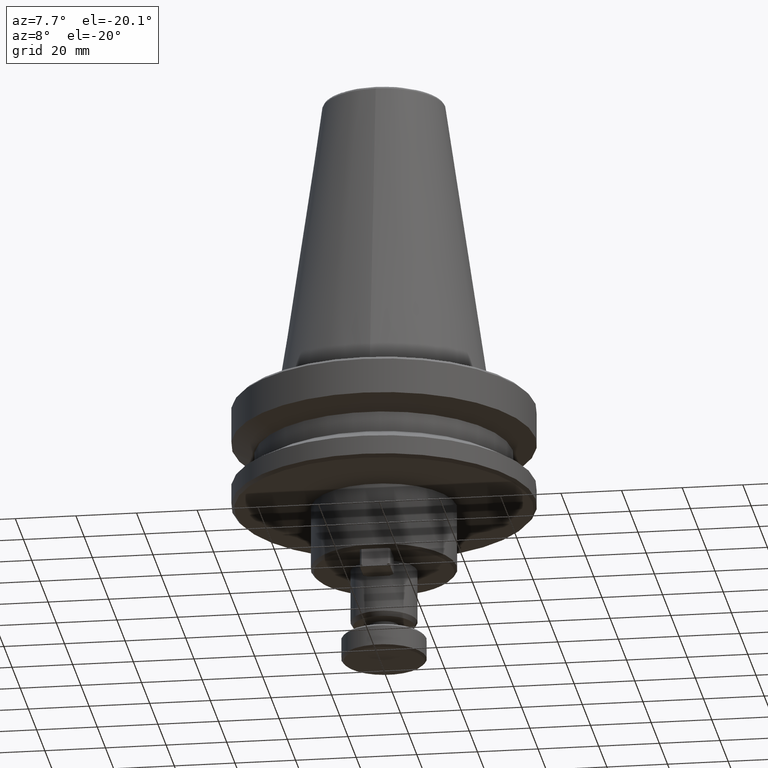
[diagram: clean part render]
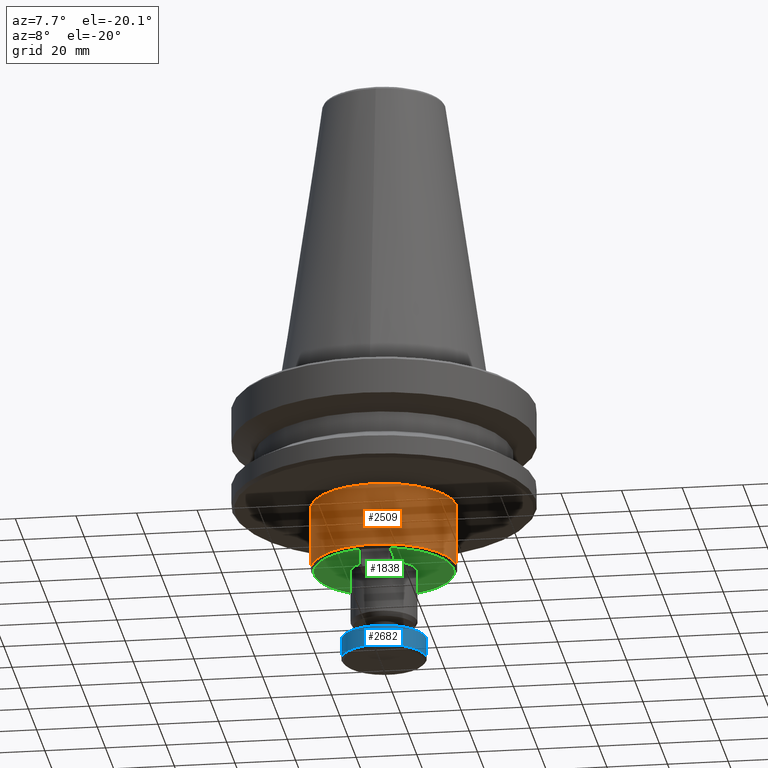
[diagram: same view with three faces highlighted in distinct colors, each labeled with its STEP entity id]
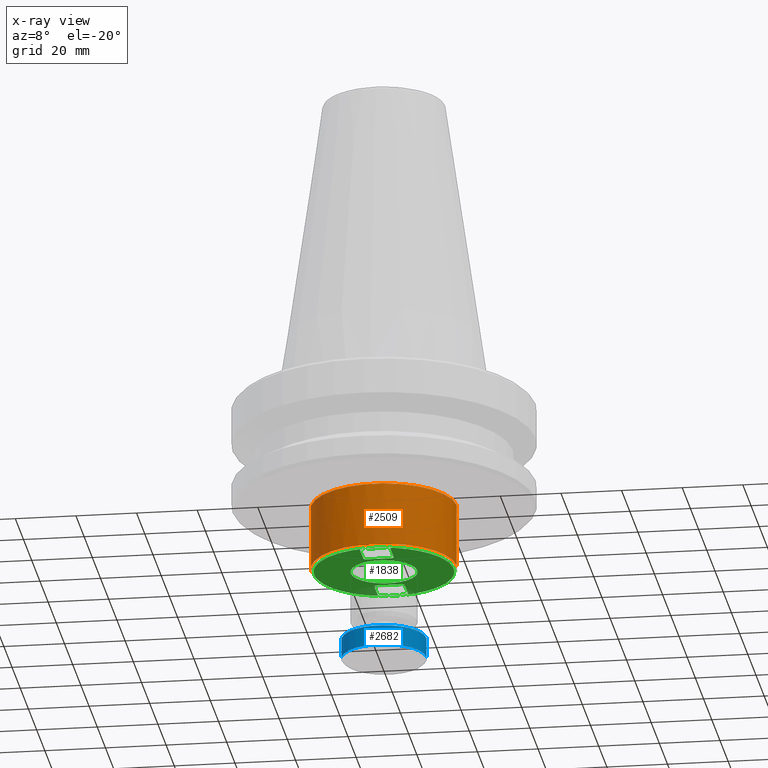
[diagram: x-ray of the same camera — body ghosted, the three highlighted faces saturated]
A machine part, auxiliary view with three faces highlighted in distinct colors.
The next image is the same camera in x-ray (body ghosted, the three faces saturated) — at least one of them is partly hidden behind the body in this view.
Their STEP definitions:

[orange] entity #2509 — the highlighted cylindrical surface (partial cylindrical patch) has radius 24 mm, axis along (0, 0, 1).
#57 = EDGE_LOOP ( 'NONE', ( #821, #222, #2569, #1429, #2453 ) ) ;
#82 = CARTESIAN_POINT ( 'NONE',  ( 24.00000000000000000, 0.0000000000000000000, -59.00000000000001400 ) ) ;
#222 = ORIENTED_EDGE ( 'NONE', *, *, #1389, .T. ) ;
#326 = FACE_OUTER_BOUND ( 'NONE', #57, .T. ) ;
#470 = VERTEX_POINT ( 'NONE', #1999 ) ;
#538 = VERTEX_POINT ( 'NONE', #2599 ) ;
#547 = VECTOR ( 'NONE', #612, 1000.000000000000000 ) ;
#612 = DIRECTION ( 'NONE',  ( 0.0000000000000000000, 0.0000000000000000000, 1.000000000000000000 ) ) ;
#614 = CARTESIAN_POINT ( 'NONE',  ( 24.00000000000000000, 0.0000000000000000000, 118.5507178974871000 ) ) ;
#670 = VERTEX_POINT ( 'NONE', #2413 ) ;
#796 = CIRCLE ( 'NONE', #1417, 24.00000000000000000 ) ;
#821 = ORIENTED_EDGE ( 'NONE', *, *, #2273, .F. ) ;
#842 = DIRECTION ( 'NONE',  ( 1.000000000000000000, 0.0000000000000000000, 0.0000000000000000000 ) ) ;
#846 = DIRECTION ( 'NONE',  ( -0.0000000000000000000, -0.0000000000000000000, -1.000000000000000000 ) ) ;
#849 = CARTESIAN_POINT ( 'NONE',  ( 0.0000000000000000000, 0.0000000000000000000, -37.99999999999999300 ) ) ;
#901 = VECTOR ( 'NONE', #2512, 1000.000000000000000 ) ;
#924 = DIRECTION ( 'NONE',  ( 1.000000000000000000, 0.0000000000000000000, 0.0000000000000000000 ) ) ;
#927 = DIRECTION ( 'NONE',  ( 0.0000000000000000000, 0.0000000000000000000, 1.000000000000000000 ) ) ;
#930 = CARTESIAN_POINT ( 'NONE',  ( 0.0000000000000000000, 0.0000000000000000000, -59.00000000000001400 ) ) ;
#945 = CIRCLE ( 'NONE', #1800, 24.00000000000000000 ) ;
#1132 = DIRECTION ( 'NONE',  ( 1.000000000000000000, 0.0000000000000000000, 0.0000000000000000000 ) ) ;
#1139 = DIRECTION ( 'NONE',  ( 0.0000000000000000000, 0.0000000000000000000, 1.000000000000000000 ) ) ;
#1140 = CARTESIAN_POINT ( 'NONE',  ( 0.0000000000000000000, 0.0000000000000000000, -59.00000000000001400 ) ) ;
#1243 = CARTESIAN_POINT ( 'NONE',  ( 0.0000000000000000000, 0.0000000000000000000, 118.5507178974871000 ) ) ;
#1248 = DIRECTION ( 'NONE',  ( 0.0000000000000000000, 0.0000000000000000000, 1.000000000000000000 ) ) ;
#1254 = DIRECTION ( 'NONE',  ( 1.000000000000000000, 0.0000000000000000000, 0.0000000000000000000 ) ) ;
#1389 = EDGE_CURVE ( 'NONE', #2248, #670, #1551, .T. ) ;
#1417 = AXIS2_PLACEMENT_3D ( 'NONE', #1140, #1139, #1132 ) ;
#1429 = ORIENTED_EDGE ( 'NONE', *, *, #1775, .T. ) ;
#1433 = LINE ( 'NONE', #2538, #901 ) ;
#1489 = EDGE_CURVE ( 'NONE', #538, #470, #945, .T. ) ;
#1551 = CIRCLE ( 'NONE', #1943, 24.00000000000000000 ) ;
#1611 = AXIS2_PLACEMENT_3D ( 'NONE', #1243, #1248, #1254 ) ;
#1775 = EDGE_CURVE ( 'NONE', #2630, #538, #2225, .T. ) ;
#1800 = AXIS2_PLACEMENT_3D ( 'NONE', #849, #846, #842 ) ;
#1943 = AXIS2_PLACEMENT_3D ( 'NONE', #930, #927, #924 ) ;
#1999 = CARTESIAN_POINT ( 'NONE',  ( -24.00000000000000000, 2.939152317953647900E-015, -37.99999999999999300 ) ) ;
#2225 = LINE ( 'NONE', #614, #547 ) ;
#2248 = VERTEX_POINT ( 'NONE', #2612 ) ;
#2273 = EDGE_CURVE ( 'NONE', #2248, #470, #1433, .T. ) ;
#2413 = CARTESIAN_POINT ( 'NONE',  ( 0.0000000000000000000, -24.00000000000000000, -59.00000000000001400 ) ) ;
#2453 = ORIENTED_EDGE ( 'NONE', *, *, #1489, .T. ) ;
#2509 = ADVANCED_FACE ( 'NONE', ( #326 ), #2594, .T. ) ;
#2512 = DIRECTION ( 'NONE',  ( 0.0000000000000000000, 0.0000000000000000000, 1.000000000000000000 ) ) ;
#2537 = EDGE_CURVE ( 'NONE', #670, #2630, #796, .T. ) ;
#2538 = CARTESIAN_POINT ( 'NONE',  ( -24.00000000000000000, 2.939152317953647900E-015, 118.5507178974871000 ) ) ;
#2569 = ORIENTED_EDGE ( 'NONE', *, *, #2537, .T. ) ;
#2594 = CYLINDRICAL_SURFACE ( 'NONE', #1611, 24.00000000000000000 ) ;
#2599 = CARTESIAN_POINT ( 'NONE',  ( 24.00000000000000000, 0.0000000000000000000, -37.99999999999999300 ) ) ;
#2612 = CARTESIAN_POINT ( 'NONE',  ( -24.00000000000000000, 2.939152317953647900E-015, -59.00000000000001400 ) ) ;
#2630 = VERTEX_POINT ( 'NONE', #82 ) ;

[blue] entity #2682 — the highlighted cylindrical surface (partial cylindrical patch) has radius 14 mm, axis along (0, 0, 1).
#70 = CARTESIAN_POINT ( 'NONE',  ( -13.99999999999998400, 1.714505518806292700E-015, -90.30000000000004000 ) ) ;
#78 = DIRECTION ( 'NONE',  ( -1.000000000000000000, 0.0000000000000000000, 0.0000000000000000000 ) ) ;
#80 = DIRECTION ( 'NONE',  ( -0.0000000000000000000, -0.0000000000000000000, 1.000000000000000000 ) ) ;
#84 = CARTESIAN_POINT ( 'NONE',  ( 0.0000000000000000000, 0.0000000000000000000, -83.70000000000003100 ) ) ;
#93 = CIRCLE ( 'NONE', #2535, 13.99999999999999800 ) ;
#146 = LINE ( 'NONE', #2618, #212 ) ;
#212 = VECTOR ( 'NONE', #1811, 1000.000000000000000 ) ;
#458 = FACE_OUTER_BOUND ( 'NONE', #2154, .T. ) ;
#534 = EDGE_CURVE ( 'NONE', #2194, #1092, #146, .T. ) ;
#587 = EDGE_CURVE ( 'NONE', #2165, #1549, #1939, .T. ) ;
#827 = CARTESIAN_POINT ( 'NONE',  ( -14.00000000000000200, 1.714505518806294800E-015, -83.70000000000003100 ) ) ;
#905 = AXIS2_PLACEMENT_3D ( 'NONE', #84, #80, #78 ) ;
#1092 = VERTEX_POINT ( 'NONE', #1262 ) ;
#1097 = ORIENTED_EDGE ( 'NONE', *, *, #587, .F. ) ;
#1208 = VECTOR ( 'NONE', #2369, 1000.000000000000000 ) ;
#1262 = CARTESIAN_POINT ( 'NONE',  ( 14.00000000000000200, 0.0000000000000000000, -83.70000000000003100 ) ) ;
#1313 = ORIENTED_EDGE ( 'NONE', *, *, #534, .T. ) ;
#1333 = CIRCLE ( 'NONE', #905, 14.00000000000000200 ) ;
#1470 = CARTESIAN_POINT ( 'NONE',  ( 0.0000000000000000000, 0.0000000000000000000, 0.0000000000000000000 ) ) ;
#1549 = VERTEX_POINT ( 'NONE', #827 ) ;
#1596 = DIRECTION ( 'NONE',  ( 0.0000000000000000000, 0.0000000000000000000, 1.000000000000000000 ) ) ;
#1607 = CARTESIAN_POINT ( 'NONE',  ( -13.99999999999999800, 1.714505518806294400E-015, 0.0000000000000000000 ) ) ;
#1811 = DIRECTION ( 'NONE',  ( 0.0000000000000000000, 0.0000000000000000000, 1.000000000000000000 ) ) ;
#1939 = LINE ( 'NONE', #1607, #1208 ) ;
#1962 = ORIENTED_EDGE ( 'NONE', *, *, #2357, .T. ) ;
#2140 = CARTESIAN_POINT ( 'NONE',  ( 13.99999999999998400, 0.0000000000000000000, -90.30000000000004000 ) ) ;
#2154 = EDGE_LOOP ( 'NONE', ( #1097, #1962, #1313, #2190 ) ) ;
#2158 = EDGE_CURVE ( 'NONE', #1549, #1092, #1333, .T. ) ;
#2165 = VERTEX_POINT ( 'NONE', #70 ) ;
#2178 = DIRECTION ( 'NONE',  ( 1.000000000000000000, 0.0000000000000000000, 0.0000000000000000000 ) ) ;
#2181 = DIRECTION ( 'NONE',  ( 0.0000000000000000000, 0.0000000000000000000, 1.000000000000000000 ) ) ;
#2190 = ORIENTED_EDGE ( 'NONE', *, *, #2158, .F. ) ;
#2194 = VERTEX_POINT ( 'NONE', #2140 ) ;
#2195 = CARTESIAN_POINT ( 'NONE',  ( 0.0000000000000000000, 0.0000000000000000000, -90.30000000000004000 ) ) ;
#2205 = CYLINDRICAL_SURFACE ( 'NONE', #2643, 13.99999999999999800 ) ;
#2357 = EDGE_CURVE ( 'NONE', #2165, #2194, #93, .T. ) ;
#2369 = DIRECTION ( 'NONE',  ( 0.0000000000000000000, 0.0000000000000000000, 1.000000000000000000 ) ) ;
#2535 = AXIS2_PLACEMENT_3D ( 'NONE', #2195, #2181, #2178 ) ;
#2583 = DIRECTION ( 'NONE',  ( 1.000000000000000000, 0.0000000000000000000, 0.0000000000000000000 ) ) ;
#2618 = CARTESIAN_POINT ( 'NONE',  ( 13.99999999999999800, 0.0000000000000000000, 0.0000000000000000000 ) ) ;
#2643 = AXIS2_PLACEMENT_3D ( 'NONE', #1470, #1596, #2583 ) ;
#2682 = ADVANCED_FACE ( 'NONE', ( #458 ), #2205, .T. ) ;

[green] entity #1838 — the highlighted planar face has unit normal (0, 0, -1).
#8 = VERTEX_POINT ( 'NONE', #2054 ) ;
#46 = CARTESIAN_POINT ( 'NONE',  ( -5.000000000000000900, 13.09999999999999300, -60.00000000000000000 ) ) ;
#47 = DIRECTION ( 'NONE',  ( -0.7071067811865474600, 0.7071067811865474600, -0.0000000000000000000 ) ) ;
#50 = ORIENTED_EDGE ( 'NONE', *, *, #949, .T. ) ;
#121 = EDGE_CURVE ( 'NONE', #502, #2608, #902, .T. ) ;
#128 = ORIENTED_EDGE ( 'NONE', *, *, #1602, .T. ) ;
#132 = EDGE_LOOP ( 'NONE', ( #2392, #2067, #50, #1119, #937, #1265, #1185, #427 ) ) ;
#262 = VERTEX_POINT ( 'NONE', #2142 ) ;
#278 = CARTESIAN_POINT ( 'NONE',  ( 4.999999999999992000, -13.09999999999999100, -60.00000000000000000 ) ) ;
#295 = VECTOR ( 'NONE', #1985, 1000.000000000000000 ) ;
#297 = VECTOR ( 'NONE', #1577, 1000.000000000000000 ) ;
#298 = ORIENTED_EDGE ( 'NONE', *, *, #1347, .F. ) ;
#303 = VECTOR ( 'NONE', #1322, 1000.000000000000000 ) ;
#355 = DIRECTION ( 'NONE',  ( -1.000000000000000000, 0.0000000000000000000, -0.0000000000000000000 ) ) ;
#359 = DIRECTION ( 'NONE',  ( 0.0000000000000000000, 0.0000000000000000000, -1.000000000000000000 ) ) ;
#365 = VERTEX_POINT ( 'NONE', #1969 ) ;
#376 = CARTESIAN_POINT ( 'NONE',  ( 0.0000000000000000000, 0.0000000000000000000, -60.00000000000000000 ) ) ;
#384 = CARTESIAN_POINT ( 'NONE',  ( 2.877919977996280300E-015, 23.00000000000000700, -60.00000000000000000 ) ) ;
#393 = LINE ( 'NONE', #1366, #2595 ) ;
#400 = LINE ( 'NONE', #956, #2097 ) ;
#427 = ORIENTED_EDGE ( 'NONE', *, *, #2304, .T. ) ;
#439 = VERTEX_POINT ( 'NONE', #2129 ) ;
#469 = FACE_OUTER_BOUND ( 'NONE', #1270, .T. ) ;
#473 = CIRCLE ( 'NONE', #1984, 23.00000000000000700 ) ;
#502 = VERTEX_POINT ( 'NONE', #1858 ) ;
#515 = EDGE_CURVE ( 'NONE', #262, #1708, #1498, .T. ) ;
#570 = CARTESIAN_POINT ( 'NONE',  ( 4.999999999999999100, 21.90000000000001600, -60.00000000000000000 ) ) ;
#586 = LINE ( 'NONE', #46, #2247 ) ;
#589 = ORIENTED_EDGE ( 'NONE', *, *, #813, .T. ) ;
#593 = VECTOR ( 'NONE', #777, 1000.000000000000100 ) ;
#605 = PLANE ( 'NONE',  #1488 ) ;
#619 = CARTESIAN_POINT ( 'NONE',  ( -4.400000000000011900, 12.50000000000000000, -60.00000000000000000 ) ) ;
#621 = CARTESIAN_POINT ( 'NONE',  ( 5.000000000000000000, 13.09999999999993400, -60.00000000000000000 ) ) ;
#663 = DIRECTION ( 'NONE',  ( -0.7071067811865474600, -0.7071067811865474600, -0.0000000000000000000 ) ) ;
#665 = EDGE_CURVE ( 'NONE', #439, #2608, #1143, .T. ) ;
#677 = CARTESIAN_POINT ( 'NONE',  ( -4.400000000000011000, 22.50000000000000400, -60.00000000000000000 ) ) ;
#695 = VECTOR ( 'NONE', #2069, 1000.000000000000000 ) ;
#697 = CARTESIAN_POINT ( 'NONE',  ( -5.000000000000000900, 21.90000000000001300, -60.00000000000000000 ) ) ;
#705 = CARTESIAN_POINT ( 'NONE',  ( -5.000000000000004400, -21.90000000000003800, -60.00000000000000000 ) ) ;
#732 = VECTOR ( 'NONE', #2319, 1000.000000000000000 ) ;
#756 = CARTESIAN_POINT ( 'NONE',  ( 4.400000000000011000, 22.50000000000000400, -60.00000000000000000 ) ) ;
#762 = LINE ( 'NONE', #1096, #1235 ) ;
#777 = DIRECTION ( 'NONE',  ( 0.7071067811865474600, 0.7071067811865474600, -0.0000000000000000000 ) ) ;
#785 = CARTESIAN_POINT ( 'NONE',  ( 4.399999999999975500, -22.50000000000000000, -60.00000000000000000 ) ) ;
#813 = EDGE_CURVE ( 'NONE', #439, #1547, #2417, .T. ) ;
#834 = DIRECTION ( 'NONE',  ( 0.7071067811865474600, -0.7071067811865474600, -0.0000000000000000000 ) ) ;
#841 = CARTESIAN_POINT ( 'NONE',  ( -4.399999999999978200, -12.50000000000000000, -60.00000000000000000 ) ) ;
#850 = CARTESIAN_POINT ( 'NONE',  ( 5.000000000000000000, 21.90000000000001300, -60.00000000000000000 ) ) ;
#853 = EDGE_CURVE ( 'NONE', #1400, #1708, #2012, .T. ) ;
#895 = VERTEX_POINT ( 'NONE', #1524 ) ;
#902 = LINE ( 'NONE', #2028, #295 ) ;
#911 = EDGE_CURVE ( 'NONE', #365, #2432, #2526, .T. ) ;
#926 = EDGE_CURVE ( 'NONE', #2467, #2687, #1229, .T. ) ;
#937 = ORIENTED_EDGE ( 'NONE', *, *, #1008, .T. ) ;
#949 = EDGE_CURVE ( 'NONE', #1622, #972, #2342, .T. ) ;
#955 = DIRECTION ( 'NONE',  ( 1.000000000000000000, -0.0000000000000000000, 0.0000000000000000000 ) ) ;
#956 = CARTESIAN_POINT ( 'NONE',  ( 0.0000000000000000000, -22.50000000000000000, -60.00000000000000000 ) ) ;
#957 = DIRECTION ( 'NONE',  ( 0.0000000000000000000, -1.000000000000000000, 0.0000000000000000000 ) ) ;
#960 = DIRECTION ( 'NONE',  ( 0.0000000000000000000, -1.445602896647339200E-016, 1.000000000000000000 ) ) ;
#964 = CARTESIAN_POINT ( 'NONE',  ( 0.0000000000000000000, 1.445602896647330500E-016, -60.00000000000000000 ) ) ;
#972 = VERTEX_POINT ( 'NONE', #1412 ) ;
#975 = CARTESIAN_POINT ( 'NONE',  ( -4.999999999999993800, -13.10000000000001700, -60.00000000000000000 ) ) ;
#982 = VECTOR ( 'NONE', #663, 1000.000000000000100 ) ;
#1008 = EDGE_CURVE ( 'NONE', #1732, #2660, #393, .T. ) ;
#1046 = EDGE_CURVE ( 'NONE', #2432, #365, #2068, .T. ) ;
#1050 = ORIENTED_EDGE ( 'NONE', *, *, #121, .T. ) ;
#1069 = EDGE_CURVE ( 'NONE', #1785, #895, #2149, .T. ) ;
#1090 = FACE_BOUND ( 'NONE', #1405, .T. ) ;
#1096 = CARTESIAN_POINT ( 'NONE',  ( 4.999999999999999100, 0.0000000000000000000, -60.00000000000000000 ) ) ;
#1098 = DIRECTION ( 'NONE',  ( 0.0000000000000000000, 1.000000000000000000, 0.0000000000000000000 ) ) ;
#1119 = ORIENTED_EDGE ( 'NONE', *, *, #1740, .T. ) ;
#1137 = DIRECTION ( 'NONE',  ( -0.7071067811865470200, -0.7071067811865480200, -0.0000000000000000000 ) ) ;
#1143 = LINE ( 'NONE', #2414, #1673 ) ;
#1149 = CARTESIAN_POINT ( 'NONE',  ( -4.399999999999978200, -12.50000000000000000, -60.00000000000000000 ) ) ;
#1166 = VECTOR ( 'NONE', #1137, 1000.000000000000000 ) ;
#1185 = ORIENTED_EDGE ( 'NONE', *, *, #1069, .T. ) ;
#1198 = EDGE_CURVE ( 'NONE', #1547, #1400, #1234, .T. ) ;
#1229 = CIRCLE ( 'NONE', #2548, 23.00000000000000700 ) ;
#1234 = LINE ( 'NONE', #1149, #1166 ) ;
#1235 = VECTOR ( 'NONE', #1098, 1000.000000000000000 ) ;
#1261 = ORIENTED_EDGE ( 'NONE', *, *, #911, .T. ) ;
#1265 = ORIENTED_EDGE ( 'NONE', *, *, #2188, .F. ) ;
#1270 = EDGE_LOOP ( 'NONE', ( #2527, #298 ) ) ;
#1280 = EDGE_CURVE ( 'NONE', #1779, #2587, #762, .T. ) ;
#1301 = CARTESIAN_POINT ( 'NONE',  ( 0.0000000000000000000, 12.50000000000000000, -60.00000000000000000 ) ) ;
#1307 = DIRECTION ( 'NONE',  ( 1.000000000000000000, 0.0000000000000000000, 0.0000000000000000000 ) ) ;
#1311 = DIRECTION ( 'NONE',  ( 0.0000000000000000000, 0.0000000000000000000, 1.000000000000000000 ) ) ;
#1316 = CARTESIAN_POINT ( 'NONE',  ( 0.0000000000000000000, 0.0000000000000000000, -60.00000000000001400 ) ) ;
#1322 = DIRECTION ( 'NONE',  ( 1.000000000000000000, -0.0000000000000000000, 0.0000000000000000000 ) ) ;
#1337 = LINE ( 'NONE', #850, #2379 ) ;
#1347 = EDGE_CURVE ( 'NONE', #2687, #2467, #473, .T. ) ;
#1366 = CARTESIAN_POINT ( 'NONE',  ( -5.000000000000000000, 0.0000000000000000000, -60.00000000000000000 ) ) ;
#1368 = EDGE_CURVE ( 'NONE', #262, #8, #400, .T. ) ;
#1377 = DIRECTION ( 'NONE',  ( -0.0000000000000000000, -1.000000000000000000, -0.0000000000000000000 ) ) ;
#1400 = VERTEX_POINT ( 'NONE', #975 ) ;
#1405 = EDGE_LOOP ( 'NONE', ( #1698, #1541, #1953, #128, #1050, #1751, #589, #2216 ) ) ;
#1412 = CARTESIAN_POINT ( 'NONE',  ( -4.400000000000011900, 22.50000000000000400, -60.00000000000000000 ) ) ;
#1438 = CARTESIAN_POINT ( 'NONE',  ( 0.0000000000000000000, 22.50000000000000400, -60.00000000000000000 ) ) ;
#1445 = DIRECTION ( 'NONE',  ( 0.0000000000000000000, -1.000000000000000000, 0.0000000000000000000 ) ) ;
#1447 = DIRECTION ( 'NONE',  ( 0.0000000000000000000, -1.445602896647339200E-016, 1.000000000000000000 ) ) ;
#1450 = CARTESIAN_POINT ( 'NONE',  ( 0.0000000000000000000, 1.445602896647330500E-016, -60.00000000000000000 ) ) ;
#1453 = DIRECTION ( 'NONE',  ( -1.000000000000000000, 0.0000000000000000000, -0.0000000000000000000 ) ) ;
#1479 = DIRECTION ( 'NONE',  ( 1.000000000000000000, 0.0000000000000000000, 0.0000000000000000000 ) ) ;
#1481 = DIRECTION ( 'NONE',  ( 0.0000000000000000000, 0.0000000000000000000, 1.000000000000000000 ) ) ;
#1486 = CARTESIAN_POINT ( 'NONE',  ( 0.0000000000000000000, 0.0000000000000000000, -60.00000000000001400 ) ) ;
#1488 = AXIS2_PLACEMENT_3D ( 'NONE', #376, #359, #355 ) ;
#1498 = LINE ( 'NONE', #1910, #732 ) ;
#1524 = CARTESIAN_POINT ( 'NONE',  ( 4.400000000000037700, 12.50000000000000000, -60.00000000000000000 ) ) ;
#1538 = EDGE_CURVE ( 'NONE', #1622, #2587, #1337, .T. ) ;
#1541 = ORIENTED_EDGE ( 'NONE', *, *, #515, .F. ) ;
#1547 = VERTEX_POINT ( 'NONE', #841 ) ;
#1577 = DIRECTION ( 'NONE',  ( -0.0000000000000000000, -1.000000000000000000, -0.0000000000000000000 ) ) ;
#1587 = LINE ( 'NONE', #677, #982 ) ;
#1602 = EDGE_CURVE ( 'NONE', #8, #502, #2311, .T. ) ;
#1622 = VERTEX_POINT ( 'NONE', #756 ) ;
#1673 = VECTOR ( 'NONE', #2388, 1000.000000000000000 ) ;
#1693 = FACE_BOUND ( 'NONE', #132, .T. ) ;
#1698 = ORIENTED_EDGE ( 'NONE', *, *, #853, .T. ) ;
#1708 = VERTEX_POINT ( 'NONE', #705 ) ;
#1730 = CARTESIAN_POINT ( 'NONE',  ( -4.999999999999993800, 0.0000000000000000000, -60.00000000000000000 ) ) ;
#1732 = VERTEX_POINT ( 'NONE', #697 ) ;
#1740 = EDGE_CURVE ( 'NONE', #972, #1732, #1587, .T. ) ;
#1751 = ORIENTED_EDGE ( 'NONE', *, *, #665, .F. ) ;
#1752 = VECTOR ( 'NONE', #1453, 1000.000000000000000 ) ;
#1779 = VERTEX_POINT ( 'NONE', #621 ) ;
#1785 = VERTEX_POINT ( 'NONE', #619 ) ;
#1838 = ADVANCED_FACE ( 'NONE', ( #1693, #2662, #1090, #469 ), #605, .T. ) ;
#1842 = CARTESIAN_POINT ( 'NONE',  ( 0.0000000000000000000, -12.50000000000000000, -60.00000000000000000 ) ) ;
#1858 = CARTESIAN_POINT ( 'NONE',  ( 4.999999999999992000, -21.89999999999998100, -60.00000000000000000 ) ) ;
#1886 = VECTOR ( 'NONE', #2457, 1000.000000000000000 ) ;
#1910 = CARTESIAN_POINT ( 'NONE',  ( -5.000000000000008000, -21.90000000000003800, -60.00000000000000000 ) ) ;
#1925 = EDGE_LOOP ( 'NONE', ( #1989, #1261 ) ) ;
#1953 = ORIENTED_EDGE ( 'NONE', *, *, #1368, .T. ) ;
#1969 = CARTESIAN_POINT ( 'NONE',  ( -11.00000000000000500, 1.347111479062089000E-015, -60.00000000000001400 ) ) ;
#1984 = AXIS2_PLACEMENT_3D ( 'NONE', #964, #960, #957 ) ;
#1985 = DIRECTION ( 'NONE',  ( 0.0000000000000000000, 1.000000000000000000, 0.0000000000000000000 ) ) ;
#1987 = CARTESIAN_POINT ( 'NONE',  ( 0.0000000000000000000, -23.00000000000000700, -60.00000000000000000 ) ) ;
#1989 = ORIENTED_EDGE ( 'NONE', *, *, #1046, .T. ) ;
#2012 = LINE ( 'NONE', #1730, #297 ) ;
#2028 = CARTESIAN_POINT ( 'NONE',  ( 4.999999999999991100, 0.0000000000000000000, -60.00000000000000000 ) ) ;
#2033 = CARTESIAN_POINT ( 'NONE',  ( 11.00000000000000500, 0.0000000000000000000, -60.00000000000001400 ) ) ;
#2054 = CARTESIAN_POINT ( 'NONE',  ( 4.399999999999975500, -22.50000000000000000, -60.00000000000000000 ) ) ;
#2067 = ORIENTED_EDGE ( 'NONE', *, *, #1538, .F. ) ;
#2068 = CIRCLE ( 'NONE', #2324, 11.00000000000000500 ) ;
#2069 = DIRECTION ( 'NONE',  ( -1.000000000000000000, 0.0000000000000000000, -0.0000000000000000000 ) ) ;
#2097 = VECTOR ( 'NONE', #955, 1000.000000000000000 ) ;
#2129 = CARTESIAN_POINT ( 'NONE',  ( 4.399999999999976400, -12.50000000000000000, -60.00000000000000000 ) ) ;
#2142 = CARTESIAN_POINT ( 'NONE',  ( -4.400000000000046500, -22.50000000000000000, -60.00000000000000000 ) ) ;
#2149 = LINE ( 'NONE', #1301, #303 ) ;
#2188 = EDGE_CURVE ( 'NONE', #1785, #2660, #586, .T. ) ;
#2216 = ORIENTED_EDGE ( 'NONE', *, *, #1198, .T. ) ;
#2238 = CARTESIAN_POINT ( 'NONE',  ( -5.000000000000000900, 13.09999999999999400, -60.00000000000000000 ) ) ;
#2247 = VECTOR ( 'NONE', #47, 1000.000000000000100 ) ;
#2304 = EDGE_CURVE ( 'NONE', #895, #1779, #2456, .T. ) ;
#2311 = LINE ( 'NONE', #785, #593 ) ;
#2319 = DIRECTION ( 'NONE',  ( -0.7071067811865470200, 0.7071067811865481300, -0.0000000000000000000 ) ) ;
#2324 = AXIS2_PLACEMENT_3D ( 'NONE', #1316, #1311, #1307 ) ;
#2342 = LINE ( 'NONE', #1438, #1752 ) ;
#2379 = VECTOR ( 'NONE', #834, 1000.000000000000100 ) ;
#2388 = DIRECTION ( 'NONE',  ( 0.7071067811865638900, -0.7071067811865311400, -0.0000000000000000000 ) ) ;
#2392 = ORIENTED_EDGE ( 'NONE', *, *, #1280, .T. ) ;
#2414 = CARTESIAN_POINT ( 'NONE',  ( 4.999999999999992900, -13.09999999999999300, -60.00000000000000000 ) ) ;
#2417 = LINE ( 'NONE', #1842, #695 ) ;
#2432 = VERTEX_POINT ( 'NONE', #2033 ) ;
#2456 = LINE ( 'NONE', #2491, #1886 ) ;
#2457 = DIRECTION ( 'NONE',  ( 0.7071067811865638900, 0.7071067811865311400, -0.0000000000000000000 ) ) ;
#2467 = VERTEX_POINT ( 'NONE', #1987 ) ;
#2491 = CARTESIAN_POINT ( 'NONE',  ( 4.400000000000037700, 12.49999999999999800, -60.00000000000000000 ) ) ;
#2526 = CIRCLE ( 'NONE', #2632, 11.00000000000000500 ) ;
#2527 = ORIENTED_EDGE ( 'NONE', *, *, #926, .F. ) ;
#2548 = AXIS2_PLACEMENT_3D ( 'NONE', #1450, #1447, #1445 ) ;
#2587 = VERTEX_POINT ( 'NONE', #570 ) ;
#2595 = VECTOR ( 'NONE', #1377, 1000.000000000000000 ) ;
#2608 = VERTEX_POINT ( 'NONE', #278 ) ;
#2632 = AXIS2_PLACEMENT_3D ( 'NONE', #1486, #1481, #1479 ) ;
#2660 = VERTEX_POINT ( 'NONE', #2238 ) ;
#2662 = FACE_BOUND ( 'NONE', #1925, .T. ) ;
#2687 = VERTEX_POINT ( 'NONE', #384 ) ;